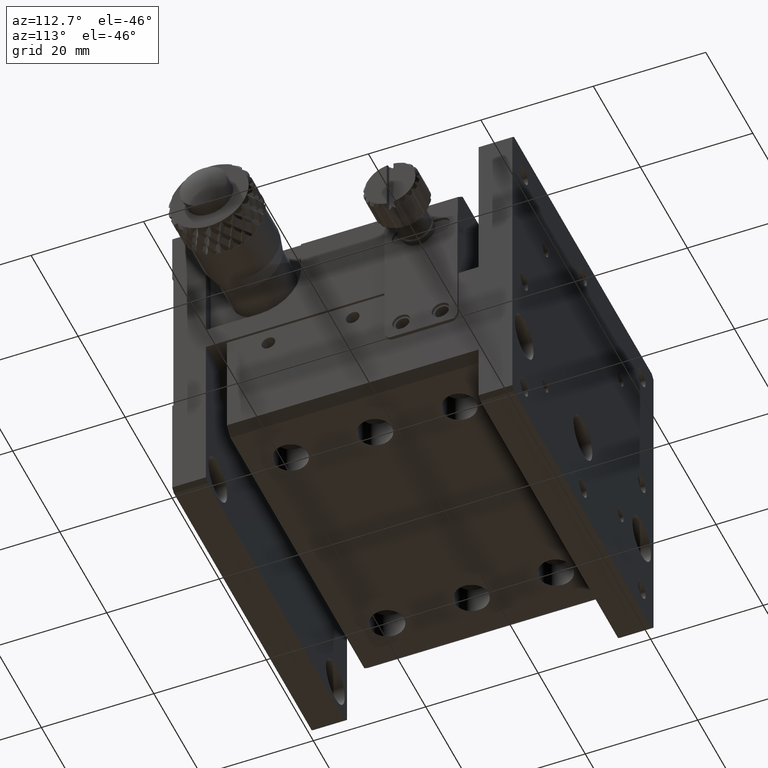
[diagram: clean part render]
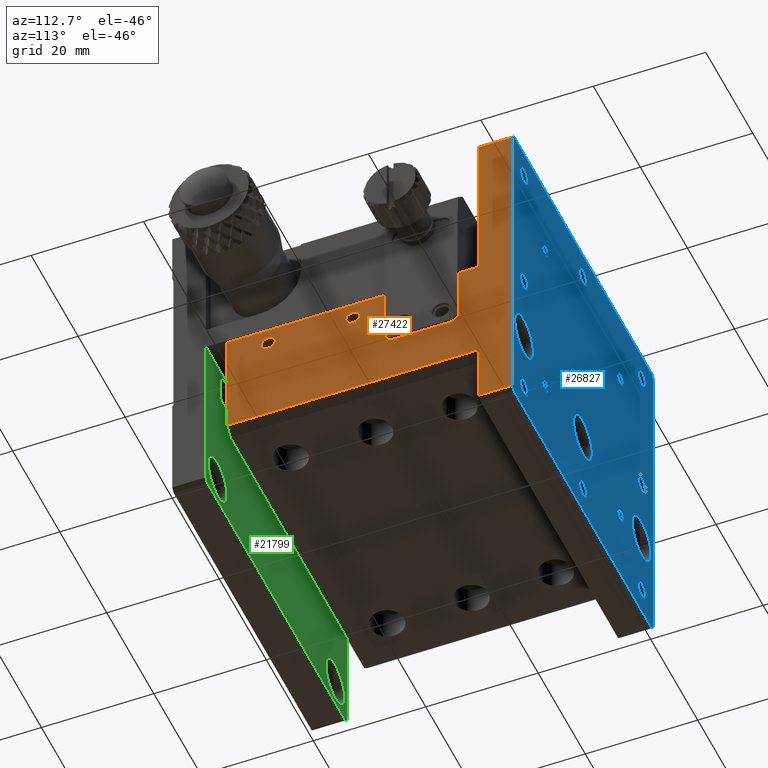
[diagram: same view with three faces highlighted in distinct colors, each labeled with its STEP entity id]
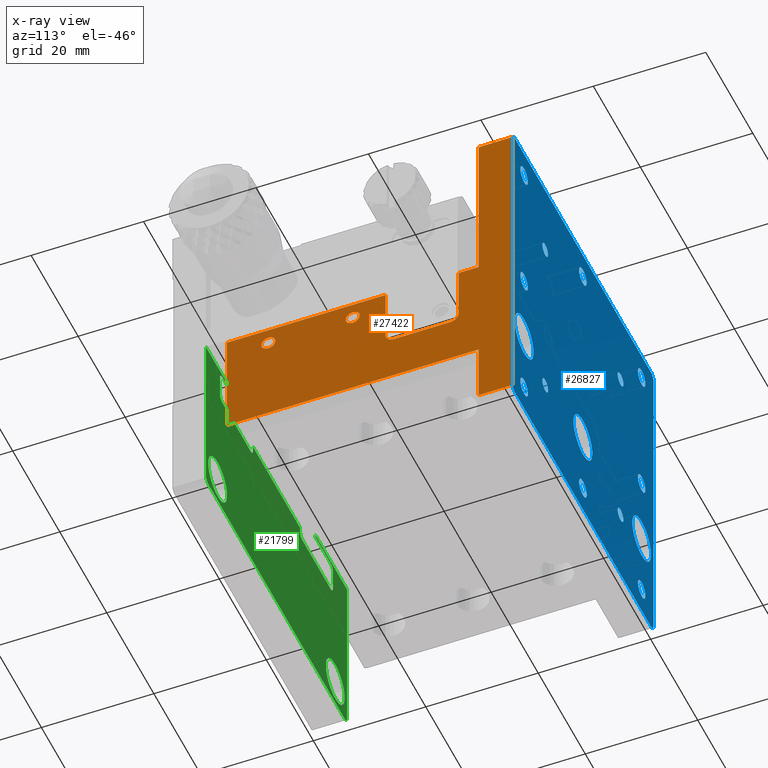
[diagram: x-ray of the same camera — body ghosted, the three highlighted faces saturated]
A machine part, auxiliary view with three faces highlighted in distinct colors.
The next image is the same camera in x-ray (body ghosted, the three faces saturated) — at least one of them is partly hidden behind the body in this view.
Their STEP definitions:

[orange] entity #27422 — the highlighted planar face has unit normal (1, 0, 0).
#132 = DIRECTION ( 'NONE',  ( -0.000000000000000000, 0.000000000000000000, -1.000000000000000000 ) ) ;
#361 = LINE ( 'NONE', #26179, #12329 ) ;
#518 = CARTESIAN_POINT ( 'NONE',  ( 60.00000000000000000, 32.10000000000000142, -32.00000000000000000 ) ) ;
#585 = VERTEX_POINT ( 'NONE', #11883 ) ;
#604 = CARTESIAN_POINT ( 'NONE',  ( 60.00000000000000000, 50.95000000000000995, -38.50000000000000000 ) ) ;
#813 = DIRECTION ( 'NONE',  ( 0.000000000000000000, 0.000000000000000000, -1.000000000000000000 ) ) ;
#874 = CIRCLE ( 'NONE', #2223, 1.500000000000001332 ) ;
#958 = CARTESIAN_POINT ( 'NONE',  ( 60.00000000000000000, 9.700000000000001066, -0.7099999999999999645 ) ) ;
#997 = VERTEX_POINT ( 'NONE', #18464 ) ;
#1286 = DIRECTION ( 'NONE',  ( 0.000000000000000000, 0.000000000000000000, 1.000000000000000000 ) ) ;
#1414 = AXIS2_PLACEMENT_3D ( 'NONE', #518, #6583, #4304 ) ;
#1678 = ORIENTED_EDGE ( 'NONE', *, *, #10411, .F. ) ;
#1834 = DIRECTION ( 'NONE',  ( 0.000000000000000000, -1.000000000000000000, -0.000000000000000000 ) ) ;
#1889 = DIRECTION ( 'NONE',  ( 0.000000000000000000, 0.000000000000000000, 1.000000000000000000 ) ) ;
#1951 = LINE ( 'NONE', #18872, #13512 ) ;
#2223 = AXIS2_PLACEMENT_3D ( 'NONE', #27567, #25463, #1889 ) ;
#2234 = CARTESIAN_POINT ( 'NONE',  ( 60.00000000000000000, 60.50000000000000000, 0.000000000000000000 ) ) ;
#2869 = CARTESIAN_POINT ( 'NONE',  ( 60.00000000000000000, 54.50000000000000000, -48.50000000000000000 ) ) ;
#2906 = EDGE_CURVE ( 'NONE', #10319, #10319, #8338, .T. ) ;
#3243 = DIRECTION ( 'NONE',  ( -1.000000000000000000, 0.000000000000000000, 0.000000000000000000 ) ) ;
#3566 = FACE_BOUND ( 'NONE', #14715, .T. ) ;
#3730 = ORIENTED_EDGE ( 'NONE', *, *, #22140, .T. ) ;
#3757 = CARTESIAN_POINT ( 'NONE',  ( 60.00000000000000000, 54.50000000000000000, -40.00000000000000000 ) ) ;
#3968 = ORIENTED_EDGE ( 'NONE', *, *, #4024, .T. ) ;
#3979 = VERTEX_POINT ( 'NONE', #7013 ) ;
#4024 = EDGE_CURVE ( 'NONE', #20504, #16964, #13659, .T. ) ;
#4056 = EDGE_CURVE ( 'NONE', #585, #27066, #25630, .T. ) ;
#4304 = DIRECTION ( 'NONE',  ( 0.000000000000000000, 0.000000000000000000, 1.000000000000000000 ) ) ;
#4367 = ORIENTED_EDGE ( 'NONE', *, *, #11198, .T. ) ;
#4764 = ORIENTED_EDGE ( 'NONE', *, *, #13915, .T. ) ;
#4921 = CARTESIAN_POINT ( 'NONE',  ( 60.00000000000000000, 54.50000000000000000, -0.7099999999999999645 ) ) ;
#5049 = EDGE_CURVE ( 'NONE', #24452, #18038, #16305, .T. ) ;
#5197 = DIRECTION ( 'NONE',  ( 0.000000000000000000, -1.000000000000000000, -0.000000000000000000 ) ) ;
#6245 = VECTOR ( 'NONE', #813, 1000.000000000000000 ) ;
#6423 = ORIENTED_EDGE ( 'NONE', *, *, #17096, .T. ) ;
#6583 = DIRECTION ( 'NONE',  ( -1.000000000000000000, 0.000000000000000000, 0.000000000000000000 ) ) ;
#7013 = CARTESIAN_POINT ( 'NONE',  ( 60.00000000000000000, 60.50000000000000000, -0.7100000000000001865 ) ) ;
#7658 = EDGE_CURVE ( 'NONE', #21727, #17479, #16406, .T. ) ;
#7670 = EDGE_CURVE ( 'NONE', #24306, #27386, #874, .T. ) ;
#7999 = DIRECTION ( 'NONE',  ( -1.000000000000000000, 0.000000000000000000, 0.000000000000000000 ) ) ;
#8166 = DIRECTION ( 'NONE',  ( 0.000000000000000000, 0.000000000000000000, -1.000000000000000000 ) ) ;
#8212 = CARTESIAN_POINT ( 'NONE',  ( 60.00000000000000000, 17.09999999999999787, -32.00000000000000000 ) ) ;
#8272 = VECTOR ( 'NONE', #132, 1000.000000000000000 ) ;
#8291 = AXIS2_PLACEMENT_3D ( 'NONE', #18672, #14449, #20507 ) ;
#8338 = CIRCLE ( 'NONE', #27706, 1.229500000000001370 ) ;
#9127 = LINE ( 'NONE', #18263, #24094 ) ;
#10319 = VERTEX_POINT ( 'NONE', #17076 ) ;
#10401 = DIRECTION ( 'NONE',  ( 0.000000000000000000, -1.000000000000000000, -0.000000000000000000 ) ) ;
#10411 = EDGE_CURVE ( 'NONE', #3979, #17479, #21572, .T. ) ;
#10969 = VERTEX_POINT ( 'NONE', #15035 ) ;
#11030 = CARTESIAN_POINT ( 'NONE',  ( 60.00000000000000000, 54.50000000000000000, -59.28999999999999204 ) ) ;
#11198 = EDGE_CURVE ( 'NONE', #16964, #997, #25681, .T. ) ;
#11335 = CARTESIAN_POINT ( 'NONE',  ( 60.00000000000000000, 54.50000000000000000, -0.7100000000000001865 ) ) ;
#11503 = ORIENTED_EDGE ( 'NONE', *, *, #26385, .T. ) ;
#11594 = VECTOR ( 'NONE', #20129, 1000.000000000000000 ) ;
#11715 = LINE ( 'NONE', #4921, #23466 ) ;
#11883 = CARTESIAN_POINT ( 'NONE',  ( 60.00000000000000000, 39.44999999999999574, -39.99999999999999289 ) ) ;
#12329 = VECTOR ( 'NONE', #13468, 1000.000000000000000 ) ;
#12407 = CARTESIAN_POINT ( 'NONE',  ( 60.00000000000000000, 54.50000000000000000, -0.7099999999999999645 ) ) ;
#12430 = ORIENTED_EDGE ( 'NONE', *, *, #2906, .T. ) ;
#13468 = DIRECTION ( 'NONE',  ( 0.000000000000000000, -1.000000000000000000, -0.000000000000000000 ) ) ;
#13512 = VECTOR ( 'NONE', #25934, 1000.000000000000000 ) ;
#13545 = ORIENTED_EDGE ( 'NONE', *, *, #22462, .T. ) ;
#13649 = CARTESIAN_POINT ( 'NONE',  ( 60.00000000000000000, 54.50000000000000000, -48.50000000000000000 ) ) ;
#13659 = LINE ( 'NONE', #20122, #6245 ) ;
#13915 = EDGE_CURVE ( 'NONE', #27386, #585, #26257, .T. ) ;
#14143 = EDGE_CURVE ( 'NONE', #10969, #10969, #27535, .T. ) ;
#14214 = EDGE_LOOP ( 'NONE', ( #12430 ) ) ;
#14307 = CARTESIAN_POINT ( 'NONE',  ( 60.00000000000000000, 54.50000000000000000, -59.28999999999999915 ) ) ;
#14449 = DIRECTION ( 'NONE',  ( 1.000000000000000000, 0.000000000000000000, 0.000000000000000000 ) ) ;
#14659 = EDGE_LOOP ( 'NONE', ( #3968, #4367, #13545, #26809, #4764, #23611, #27158, #11503, #25892, #3730, #18362, #27245, #1678, #6423 ) ) ;
#14715 = EDGE_LOOP ( 'NONE', ( #23903 ) ) ;
#15035 = CARTESIAN_POINT ( 'NONE',  ( 60.00000000000000000, 32.10000000000000142, -30.77049999999999841 ) ) ;
#15423 = CARTESIAN_POINT ( 'NONE',  ( 60.00000000000000000, 9.700000000000001066, -48.50000000000000000 ) ) ;
#15742 = LINE ( 'NONE', #13649, #23442 ) ;
#16305 = LINE ( 'NONE', #958, #11594 ) ;
#16406 = LINE ( 'NONE', #14307, #22933 ) ;
#16964 = VERTEX_POINT ( 'NONE', #23840 ) ;
#17076 = CARTESIAN_POINT ( 'NONE',  ( 60.00000000000000000, 17.09999999999999787, -30.77049999999999841 ) ) ;
#17096 = EDGE_CURVE ( 'NONE', #3979, #20504, #11715, .T. ) ;
#17479 = VERTEX_POINT ( 'NONE', #23092 ) ;
#18038 = VERTEX_POINT ( 'NONE', #15423 ) ;
#18263 = CARTESIAN_POINT ( 'NONE',  ( 60.00000000000000000, 37.94999999999999574, -0.7099999999999999645 ) ) ;
#18362 = ORIENTED_EDGE ( 'NONE', *, *, #20042, .T. ) ;
#18464 = CARTESIAN_POINT ( 'NONE',  ( 60.00000000000000000, 50.95000000000001705, -29.00000000000000000 ) ) ;
#18672 = CARTESIAN_POINT ( 'NONE',  ( 60.00000000000000000, 54.50000000000000000, -0.7099999999999999645 ) ) ;
#18707 = EDGE_CURVE ( 'NONE', #27066, #26411, #9127, .T. ) ;
#18753 = CARTESIAN_POINT ( 'NONE',  ( 60.00000000000000000, 54.50000000000000000, -29.00000000000000000 ) ) ;
#18872 = CARTESIAN_POINT ( 'NONE',  ( 60.00000000000000000, 50.95000000000001705, -0.7099999999999999645 ) ) ;
#19200 = CARTESIAN_POINT ( 'NONE',  ( 60.00000000000000000, 9.700000000000001066, -29.00000000000000000 ) ) ;
#19557 = VECTOR ( 'NONE', #1834, 1000.000000000000000 ) ;
#20042 = EDGE_CURVE ( 'NONE', #26305, #21727, #23104, .T. ) ;
#20122 = CARTESIAN_POINT ( 'NONE',  ( 60.00000000000000000, 54.50000000000000000, -0.7099999999999999645 ) ) ;
#20129 = DIRECTION ( 'NONE',  ( 0.000000000000000000, 0.000000000000000000, -1.000000000000000000 ) ) ;
#20365 = CARTESIAN_POINT ( 'NONE',  ( 60.00000000000000000, 49.44999999999999574, -40.00000000000000000 ) ) ;
#20504 = VERTEX_POINT ( 'NONE', #11335 ) ;
#20507 = DIRECTION ( 'NONE',  ( 0.000000000000000000, 0.000000000000000000, -1.000000000000000000 ) ) ;
#21082 = PLANE ( 'NONE',  #8291 ) ;
#21107 = CARTESIAN_POINT ( 'NONE',  ( 60.00000000000000000, 37.94999999999999574, -38.50000000000000000 ) ) ;
#21117 = CARTESIAN_POINT ( 'NONE',  ( 60.00000000000000000, 39.44999999999999574, -38.50000000000000000 ) ) ;
#21572 = LINE ( 'NONE', #2234, #8272 ) ;
#21727 = VERTEX_POINT ( 'NONE', #11030 ) ;
#21959 = DIRECTION ( 'NONE',  ( -0.000000000000000000, -0.000000000000000000, 1.000000000000000000 ) ) ;
#22140 = EDGE_CURVE ( 'NONE', #18038, #26305, #15742, .T. ) ;
#22462 = EDGE_CURVE ( 'NONE', #997, #24306, #1951, .T. ) ;
#22722 = VECTOR ( 'NONE', #8166, 1000.000000000000000 ) ;
#22895 = FACE_BOUND ( 'NONE', #14214, .T. ) ;
#22933 = VECTOR ( 'NONE', #25161, 1000.000000000000000 ) ;
#23092 = CARTESIAN_POINT ( 'NONE',  ( 60.00000000000000000, 60.50000000000000000, -59.28999999999999204 ) ) ;
#23104 = LINE ( 'NONE', #12407, #22722 ) ;
#23193 = FACE_OUTER_BOUND ( 'NONE', #14659, .T. ) ;
#23442 = VECTOR ( 'NONE', #27031, 1000.000000000000000 ) ;
#23466 = VECTOR ( 'NONE', #5197, 1000.000000000000000 ) ;
#23611 = ORIENTED_EDGE ( 'NONE', *, *, #4056, .T. ) ;
#23840 = CARTESIAN_POINT ( 'NONE',  ( 60.00000000000000000, 54.50000000000000000, -29.00000000000000000 ) ) ;
#23903 = ORIENTED_EDGE ( 'NONE', *, *, #14143, .T. ) ;
#24094 = VECTOR ( 'NONE', #21959, 1000.000000000000000 ) ;
#24306 = VERTEX_POINT ( 'NONE', #604 ) ;
#24452 = VERTEX_POINT ( 'NONE', #19200 ) ;
#25147 = AXIS2_PLACEMENT_3D ( 'NONE', #21117, #7999, #27459 ) ;
#25161 = DIRECTION ( 'NONE',  ( -0.000000000000000000, 1.000000000000000000, 0.000000000000000000 ) ) ;
#25463 = DIRECTION ( 'NONE',  ( -1.000000000000000000, 0.000000000000000000, 0.000000000000000000 ) ) ;
#25630 = CIRCLE ( 'NONE', #25147, 1.499999999999987566 ) ;
#25681 = LINE ( 'NONE', #18753, #19557 ) ;
#25892 = ORIENTED_EDGE ( 'NONE', *, *, #5049, .T. ) ;
#25934 = DIRECTION ( 'NONE',  ( 0.000000000000000000, 0.000000000000000000, -1.000000000000000000 ) ) ;
#26179 = CARTESIAN_POINT ( 'NONE',  ( 60.00000000000000000, 54.50000000000000000, -29.00000000000000000 ) ) ;
#26257 = LINE ( 'NONE', #3757, #26644 ) ;
#26305 = VERTEX_POINT ( 'NONE', #2869 ) ;
#26385 = EDGE_CURVE ( 'NONE', #26411, #24452, #361, .T. ) ;
#26411 = VERTEX_POINT ( 'NONE', #27284 ) ;
#26644 = VECTOR ( 'NONE', #10401, 1000.000000000000000 ) ;
#26809 = ORIENTED_EDGE ( 'NONE', *, *, #7670, .T. ) ;
#27031 = DIRECTION ( 'NONE',  ( -0.000000000000000000, 1.000000000000000000, 0.000000000000000000 ) ) ;
#27066 = VERTEX_POINT ( 'NONE', #21107 ) ;
#27158 = ORIENTED_EDGE ( 'NONE', *, *, #18707, .T. ) ;
#27245 = ORIENTED_EDGE ( 'NONE', *, *, #7658, .T. ) ;
#27284 = CARTESIAN_POINT ( 'NONE',  ( 60.00000000000000000, 37.94999999999999574, -29.00000000000000000 ) ) ;
#27386 = VERTEX_POINT ( 'NONE', #20365 ) ;
#27422 = ADVANCED_FACE ( 'NONE', ( #3566, #22895, #23193 ), #21082, .T. ) ;
#27459 = DIRECTION ( 'NONE',  ( 0.000000000000000000, 0.000000000000000000, 1.000000000000000000 ) ) ;
#27535 = CIRCLE ( 'NONE', #1414, 1.229500000000001370 ) ;
#27567 = CARTESIAN_POINT ( 'NONE',  ( 60.00000000000000000, 49.44999999999999574, -38.50000000000000000 ) ) ;
#27706 = AXIS2_PLACEMENT_3D ( 'NONE', #8212, #3243, #1286 ) ;

[blue] entity #26827 — the highlighted planar face has unit normal (0, 1, 0).
#1 = CARTESIAN_POINT ( 'NONE',  ( 30.00000000000000000, 60.50000000000000000, -55.00000000000000000 ) ) ;
#26 = AXIS2_PLACEMENT_3D ( 'NONE', #1409, #3789, #8187 ) ;
#104 = CARTESIAN_POINT ( 'NONE',  ( 0.000000000000000000, 60.50000000000000000, 1.084202172485499997E-16 ) ) ;
#132 = DIRECTION ( 'NONE',  ( -0.000000000000000000, 0.000000000000000000, -1.000000000000000000 ) ) ;
#229 = CARTESIAN_POINT ( 'NONE',  ( 30.00000000000000000, 60.50000000000000000, -47.00000000000000000 ) ) ;
#969 = AXIS2_PLACEMENT_3D ( 'NONE', #14537, #12008, #3659 ) ;
#1342 = CIRCLE ( 'NONE', #23420, 1.229499999999999593 ) ;
#1409 = CARTESIAN_POINT ( 'NONE',  ( 5.000000000000000000, 60.50000000000000000, -30.00000000000000000 ) ) ;
#1676 = FACE_BOUND ( 'NONE', #4078, .T. ) ;
#1874 = ORIENTED_EDGE ( 'NONE', *, *, #17257, .T. ) ;
#1896 = CIRCLE ( 'NONE', #23529, 3.999999999999996447 ) ;
#1953 = DIRECTION ( 'NONE',  ( 0.000000000000000000, 1.000000000000000000, 0.000000000000000000 ) ) ;
#2215 = VERTEX_POINT ( 'NONE', #16032 ) ;
#2234 = CARTESIAN_POINT ( 'NONE',  ( 60.00000000000000000, 60.50000000000000000, 0.000000000000000000 ) ) ;
#2417 = DIRECTION ( 'NONE',  ( 0.000000000000000000, -1.000000000000000000, 0.000000000000000000 ) ) ;
#2547 = ORIENTED_EDGE ( 'NONE', *, *, #3674, .T. ) ;
#2925 = CARTESIAN_POINT ( 'NONE',  ( 60.00000000000000000, 60.50000000000000000, -59.28999999999999915 ) ) ;
#2940 = CIRCLE ( 'NONE', #20060, 1.229500000000001370 ) ;
#3249 = DIRECTION ( 'NONE',  ( 0.000000000000000000, -0.000000000000000000, 1.000000000000000000 ) ) ;
#3287 = CARTESIAN_POINT ( 'NONE',  ( 55.00000000000000000, 60.50000000000000000, -30.00000000000000000 ) ) ;
#3359 = AXIS2_PLACEMENT_3D ( 'NONE', #1, #8618, #26089 ) ;
#3361 = CARTESIAN_POINT ( 'NONE',  ( 14.00000000000000000, 60.50000000000000000, -47.22950000000000159 ) ) ;
#3491 = FACE_BOUND ( 'NONE', #9762, .T. ) ;
#3526 = ORIENTED_EDGE ( 'NONE', *, *, #10411, .T. ) ;
#3637 = FACE_BOUND ( 'NONE', #21629, .T. ) ;
#3659 = DIRECTION ( 'NONE',  ( 0.000000000000000000, 0.000000000000000000, -1.000000000000000000 ) ) ;
#3674 = EDGE_CURVE ( 'NONE', #6503, #6503, #17706, .T. ) ;
#3789 = DIRECTION ( 'NONE',  ( 0.000000000000000000, -1.000000000000000000, 0.000000000000000000 ) ) ;
#3834 = CIRCLE ( 'NONE', #13753, 1.229499999999999593 ) ;
#3898 = CARTESIAN_POINT ( 'NONE',  ( 0.7100000000000080691, 60.50000000000000000, -60.00000000000000000 ) ) ;
#3979 = VERTEX_POINT ( 'NONE', #7013 ) ;
#3992 = DIRECTION ( 'NONE',  ( -0.7071067811865470176, -0.000000000000000000, -0.7071067811865480168 ) ) ;
#4078 = EDGE_LOOP ( 'NONE', ( #9546 ) ) ;
#4088 = AXIS2_PLACEMENT_3D ( 'NONE', #17019, #6309, #16594 ) ;
#4189 = VECTOR ( 'NONE', #6835, 1000.000000000000000 ) ;
#4196 = DIRECTION ( 'NONE',  ( 0.000000000000000000, 0.000000000000000000, -1.000000000000000000 ) ) ;
#4353 = EDGE_LOOP ( 'NONE', ( #2547 ) ) ;
#4681 = VECTOR ( 'NONE', #9441, 1000.000000000000114 ) ;
#4690 = DIRECTION ( 'NONE',  ( 0.000000000000000000, 0.000000000000000000, -1.000000000000000000 ) ) ;
#4933 = DIRECTION ( 'NONE',  ( 0.000000000000000000, 0.000000000000000000, -1.000000000000000000 ) ) ;
#5260 = VERTEX_POINT ( 'NONE', #24598 ) ;
#5315 = EDGE_CURVE ( 'NONE', #9752, #2215, #19556, .T. ) ;
#5516 = EDGE_LOOP ( 'NONE', ( #18118, #11267, #15807, #27415, #22631, #13169, #3526, #11101 ) ) ;
#5530 = VECTOR ( 'NONE', #3249, 1000.000000000000000 ) ;
#5566 = CARTESIAN_POINT ( 'NONE',  ( 46.00000000000000000, 60.50000000000000000, -15.22949999999999982 ) ) ;
#5607 = FACE_OUTER_BOUND ( 'NONE', #5516, .T. ) ;
#5649 = DIRECTION ( 'NONE',  ( 0.000000000000000000, -1.000000000000000000, 0.000000000000000000 ) ) ;
#5662 = DIRECTION ( 'NONE',  ( 0.000000000000000000, -1.000000000000000000, 0.000000000000000000 ) ) ;
#5746 = DIRECTION ( 'NONE',  ( 0.000000000000000000, -0.000000000000000000, 1.000000000000000000 ) ) ;
#5861 = ORIENTED_EDGE ( 'NONE', *, *, #8683, .T. ) ;
#5898 = FACE_BOUND ( 'NONE', #20568, .T. ) ;
#6043 = FACE_BOUND ( 'NONE', #14518, .T. ) ;
#6054 = CARTESIAN_POINT ( 'NONE',  ( 59.28999999999999915, 60.50000000000000000, -60.00000000000000000 ) ) ;
#6180 = FACE_BOUND ( 'NONE', #15155, .T. ) ;
#6308 = DIRECTION ( 'NONE',  ( -1.000000000000000000, -0.000000000000000000, 0.000000000000000000 ) ) ;
#6309 = DIRECTION ( 'NONE',  ( 0.000000000000000000, -1.000000000000000000, 0.000000000000000000 ) ) ;
#6329 = DIRECTION ( 'NONE',  ( 0.000000000000000000, -1.000000000000000000, 0.000000000000000000 ) ) ;
#6503 = VERTEX_POINT ( 'NONE', #15103 ) ;
#6508 = CIRCLE ( 'NONE', #24963, 1.620999999999999996 ) ;
#6627 = EDGE_LOOP ( 'NONE', ( #24830 ) ) ;
#6653 = EDGE_CURVE ( 'NONE', #24400, #24400, #6508, .T. ) ;
#6835 = DIRECTION ( 'NONE',  ( 0.7071067811865500152, -0.000000000000000000, -0.7071067811865450192 ) ) ;
#6926 = CARTESIAN_POINT ( 'NONE',  ( 14.00000000000000000, 60.50000000000000000, -14.00000000000000000 ) ) ;
#7013 = CARTESIAN_POINT ( 'NONE',  ( 60.00000000000000000, 60.50000000000000000, -0.7100000000000001865 ) ) ;
#7041 = CARTESIAN_POINT ( 'NONE',  ( 30.00000000000000000, 60.50000000000000000, -6.621000000000000441 ) ) ;
#7604 = EDGE_CURVE ( 'NONE', #18601, #18601, #22040, .T. ) ;
#7804 = DIRECTION ( 'NONE',  ( 0.000000000000000000, 0.000000000000000000, -1.000000000000000000 ) ) ;
#7820 = CARTESIAN_POINT ( 'NONE',  ( 55.00000000000000000, 60.50000000000000000, -5.000000000000000000 ) ) ;
#7837 = EDGE_CURVE ( 'NONE', #9598, #9598, #14395, .T. ) ;
#7887 = FACE_BOUND ( 'NONE', #18444, .T. ) ;
#7939 = DIRECTION ( 'NONE',  ( 0.000000000000000000, 0.000000000000000000, -1.000000000000000000 ) ) ;
#7994 = VERTEX_POINT ( 'NONE', #22510 ) ;
#8187 = DIRECTION ( 'NONE',  ( 0.000000000000000000, 0.000000000000000000, -1.000000000000000000 ) ) ;
#8272 = VECTOR ( 'NONE', #132, 1000.000000000000000 ) ;
#8317 = FACE_BOUND ( 'NONE', #4353, .T. ) ;
#8330 = AXIS2_PLACEMENT_3D ( 'NONE', #21496, #27414, #23605 ) ;
#8439 = DIRECTION ( 'NONE',  ( 0.000000000000000000, -1.000000000000000000, 0.000000000000000000 ) ) ;
#8504 = EDGE_LOOP ( 'NONE', ( #25013 ) ) ;
#8549 = ORIENTED_EDGE ( 'NONE', *, *, #20238, .T. ) ;
#8618 = DIRECTION ( 'NONE',  ( 0.000000000000000000, -1.000000000000000000, 0.000000000000000000 ) ) ;
#8673 = LINE ( 'NONE', #17249, #13683 ) ;
#8683 = EDGE_CURVE ( 'NONE', #12282, #12282, #2940, .T. ) ;
#8707 = CARTESIAN_POINT ( 'NONE',  ( 55.00000000000000000, 60.50000000000000000, -56.62099999999999511 ) ) ;
#8725 = VECTOR ( 'NONE', #6308, 1000.000000000000000 ) ;
#9116 = VERTEX_POINT ( 'NONE', #26591 ) ;
#9256 = CARTESIAN_POINT ( 'NONE',  ( 5.000000000000000000, 60.50000000000000000, -31.62099999999999511 ) ) ;
#9407 = EDGE_CURVE ( 'NONE', #16220, #11520, #17678, .T. ) ;
#9441 = DIRECTION ( 'NONE',  ( 0.7071067811865474617, -0.000000000000000000, 0.7071067811865474617 ) ) ;
#9489 = CARTESIAN_POINT ( 'NONE',  ( 0.000000000000000000, 60.50000000000000000, 0.000000000000000000 ) ) ;
#9546 = ORIENTED_EDGE ( 'NONE', *, *, #6653, .T. ) ;
#9598 = VERTEX_POINT ( 'NONE', #25097 ) ;
#9665 = CARTESIAN_POINT ( 'NONE',  ( 5.000000000000000000, 60.50000000000000000, -56.62099999999999511 ) ) ;
#9752 = VERTEX_POINT ( 'NONE', #27405 ) ;
#9762 = EDGE_LOOP ( 'NONE', ( #24676 ) ) ;
#9827 = VERTEX_POINT ( 'NONE', #5566 ) ;
#9884 = AXIS2_PLACEMENT_3D ( 'NONE', #3287, #14597, #25023 ) ;
#9911 = EDGE_CURVE ( 'NONE', #9992, #10666, #23016, .T. ) ;
#9992 = VERTEX_POINT ( 'NONE', #12748 ) ;
#10306 = ORIENTED_EDGE ( 'NONE', *, *, #18261, .T. ) ;
#10411 = EDGE_CURVE ( 'NONE', #3979, #17479, #21572, .T. ) ;
#10557 = CARTESIAN_POINT ( 'NONE',  ( 30.00000000000000000, 60.50000000000000000, -43.00000000000000000 ) ) ;
#10622 = EDGE_LOOP ( 'NONE', ( #10306 ) ) ;
#10666 = VERTEX_POINT ( 'NONE', #26157 ) ;
#10694 = CARTESIAN_POINT ( 'NONE',  ( 0.000000000000000000, 60.50000000000000000, -60.00000000000000000 ) ) ;
#10826 = VERTEX_POINT ( 'NONE', #17153 ) ;
#11101 = ORIENTED_EDGE ( 'NONE', *, *, #19916, .F. ) ;
#11194 = EDGE_LOOP ( 'NONE', ( #22640 ) ) ;
#11267 = ORIENTED_EDGE ( 'NONE', *, *, #26289, .F. ) ;
#11520 = VERTEX_POINT ( 'NONE', #3898 ) ;
#11834 = ORIENTED_EDGE ( 'NONE', *, *, #7837, .T. ) ;
#11888 = AXIS2_PLACEMENT_3D ( 'NONE', #7820, #22618, #12206 ) ;
#12008 = DIRECTION ( 'NONE',  ( 0.000000000000000000, -1.000000000000000000, 0.000000000000000000 ) ) ;
#12058 = VERTEX_POINT ( 'NONE', #22763 ) ;
#12176 = DIRECTION ( 'NONE',  ( 0.000000000000000000, 0.000000000000000000, -1.000000000000000000 ) ) ;
#12206 = DIRECTION ( 'NONE',  ( 0.000000000000000000, 0.000000000000000000, -1.000000000000000000 ) ) ;
#12272 = FACE_BOUND ( 'NONE', #15981, .T. ) ;
#12282 = VERTEX_POINT ( 'NONE', #3361 ) ;
#12337 = EDGE_LOOP ( 'NONE', ( #24281 ) ) ;
#12379 = CIRCLE ( 'NONE', #8330, 3.999999999999996447 ) ;
#12705 = CARTESIAN_POINT ( 'NONE',  ( 5.000000000000000000, 60.50000000000000000, -5.000000000000000000 ) ) ;
#12720 = EDGE_LOOP ( 'NONE', ( #14933 ) ) ;
#12748 = CARTESIAN_POINT ( 'NONE',  ( 7.047314121155778821E-16, 60.50000000000000000, -59.29000000000000625 ) ) ;
#13162 = CIRCLE ( 'NONE', #969, 1.620999999999997332 ) ;
#13169 = ORIENTED_EDGE ( 'NONE', *, *, #26473, .F. ) ;
#13438 = DIRECTION ( 'NONE',  ( 0.000000000000000000, -1.000000000000000000, 0.000000000000000000 ) ) ;
#13478 = VERTEX_POINT ( 'NONE', #9665 ) ;
#13582 = CIRCLE ( 'NONE', #4088, 1.229500000000001370 ) ;
#13683 = VECTOR ( 'NONE', #3992, 1000.000000000000000 ) ;
#13753 = AXIS2_PLACEMENT_3D ( 'NONE', #6926, #2417, #4933 ) ;
#13858 = VECTOR ( 'NONE', #23923, 1000.000000000000000 ) ;
#14110 = EDGE_CURVE ( 'NONE', #10826, #10826, #13582, .T. ) ;
#14193 = CIRCLE ( 'NONE', #3359, 1.620999999999997332 ) ;
#14238 = FACE_BOUND ( 'NONE', #8504, .T. ) ;
#14395 = CIRCLE ( 'NONE', #17081, 3.999999999999996447 ) ;
#14518 = EDGE_LOOP ( 'NONE', ( #11834 ) ) ;
#14537 = CARTESIAN_POINT ( 'NONE',  ( 55.00000000000000000, 60.50000000000000000, -55.00000000000000000 ) ) ;
#14597 = DIRECTION ( 'NONE',  ( 0.000000000000000000, -1.000000000000000000, 0.000000000000000000 ) ) ;
#14931 = DIRECTION ( 'NONE',  ( 0.000000000000000000, 0.000000000000000000, -1.000000000000000000 ) ) ;
#14933 = ORIENTED_EDGE ( 'NONE', *, *, #15869, .T. ) ;
#14943 = CARTESIAN_POINT ( 'NONE',  ( 5.000000000000000000, 60.50000000000000000, -55.00000000000000000 ) ) ;
#14999 = EDGE_CURVE ( 'NONE', #21675, #21675, #13162, .T. ) ;
#15103 = CARTESIAN_POINT ( 'NONE',  ( 5.000000000000000000, 60.50000000000000000, -6.621000000000000441 ) ) ;
#15155 = EDGE_LOOP ( 'NONE', ( #8549 ) ) ;
#15431 = EDGE_CURVE ( 'NONE', #19545, #19545, #1896, .T. ) ;
#15788 = AXIS2_PLACEMENT_3D ( 'NONE', #14943, #23955, #4196 ) ;
#15807 = ORIENTED_EDGE ( 'NONE', *, *, #9911, .T. ) ;
#15869 = EDGE_CURVE ( 'NONE', #24187, #24187, #17560, .T. ) ;
#15981 = EDGE_LOOP ( 'NONE', ( #26142 ) ) ;
#16032 = CARTESIAN_POINT ( 'NONE',  ( 59.29000000000000625, 60.50000000000000000, -8.470329472543002405E-16 ) ) ;
#16042 = ORIENTED_EDGE ( 'NONE', *, *, #19384, .T. ) ;
#16220 = VERTEX_POINT ( 'NONE', #6054 ) ;
#16380 = CARTESIAN_POINT ( 'NONE',  ( 14.00000000000000000, 60.50000000000000000, -46.00000000000000000 ) ) ;
#16473 = FACE_BOUND ( 'NONE', #12337, .T. ) ;
#16542 = DIRECTION ( 'NONE',  ( -0.7071067811865450192, -0.000000000000000000, 0.7071067811865500152 ) ) ;
#16594 = DIRECTION ( 'NONE',  ( 0.000000000000000000, 0.000000000000000000, -1.000000000000000000 ) ) ;
#17019 = CARTESIAN_POINT ( 'NONE',  ( 46.00000000000000000, 60.50000000000000000, -46.00000000000000000 ) ) ;
#17081 = AXIS2_PLACEMENT_3D ( 'NONE', #20907, #5649, #12176 ) ;
#17153 = CARTESIAN_POINT ( 'NONE',  ( 46.00000000000000000, 60.50000000000000000, -47.22950000000000159 ) ) ;
#17249 = CARTESIAN_POINT ( 'NONE',  ( 0.000000000000000000, 60.50000000000000000, -0.7100000000000009637 ) ) ;
#17257 = EDGE_CURVE ( 'NONE', #13478, #13478, #23005, .T. ) ;
#17479 = VERTEX_POINT ( 'NONE', #23092 ) ;
#17560 = CIRCLE ( 'NONE', #26, 1.620999999999997332 ) ;
#17678 = LINE ( 'NONE', #10694, #8725 ) ;
#17706 = CIRCLE ( 'NONE', #21332, 1.620999999999999996 ) ;
#18118 = ORIENTED_EDGE ( 'NONE', *, *, #9407, .T. ) ;
#18261 = EDGE_CURVE ( 'NONE', #9116, #9116, #14193, .T. ) ;
#18444 = EDGE_LOOP ( 'NONE', ( #5861 ) ) ;
#18601 = VERTEX_POINT ( 'NONE', #20585 ) ;
#18670 = LINE ( 'NONE', #26865, #25831 ) ;
#18876 = FACE_BOUND ( 'NONE', #11194, .T. ) ;
#19384 = EDGE_CURVE ( 'NONE', #5260, #5260, #3834, .T. ) ;
#19545 = VERTEX_POINT ( 'NONE', #229 ) ;
#19556 = LINE ( 'NONE', #104, #13858 ) ;
#19810 = CARTESIAN_POINT ( 'NONE',  ( 0.7100000000000009637, 60.50000000000000000, -60.00000000000000000 ) ) ;
#19916 = EDGE_CURVE ( 'NONE', #16220, #17479, #20427, .T. ) ;
#20060 = AXIS2_PLACEMENT_3D ( 'NONE', #16380, #27544, #7939 ) ;
#20218 = LINE ( 'NONE', #19810, #4189 ) ;
#20238 = EDGE_CURVE ( 'NONE', #12058, #12058, #12379, .T. ) ;
#20427 = LINE ( 'NONE', #2925, #4681 ) ;
#20568 = EDGE_LOOP ( 'NONE', ( #16042 ) ) ;
#20585 = CARTESIAN_POINT ( 'NONE',  ( 55.00000000000000000, 60.50000000000000000, -31.62099999999999511 ) ) ;
#20861 = FACE_BOUND ( 'NONE', #10622, .T. ) ;
#20907 = CARTESIAN_POINT ( 'NONE',  ( 55.00000000000000000, 60.50000000000000000, -43.00000000000000000 ) ) ;
#21332 = AXIS2_PLACEMENT_3D ( 'NONE', #12705, #6329, #14931 ) ;
#21496 = CARTESIAN_POINT ( 'NONE',  ( 5.000000000000000000, 60.50000000000000000, -43.00000000000000000 ) ) ;
#21572 = LINE ( 'NONE', #2234, #8272 ) ;
#21629 = EDGE_LOOP ( 'NONE', ( #1874 ) ) ;
#21675 = VERTEX_POINT ( 'NONE', #8707 ) ;
#21770 = CARTESIAN_POINT ( 'NONE',  ( 46.00000000000000000, 60.50000000000000000, -14.00000000000000000 ) ) ;
#22040 = CIRCLE ( 'NONE', #9884, 1.620999999999997332 ) ;
#22045 = DIRECTION ( 'NONE',  ( 0.000000000000000000, 0.000000000000000000, -1.000000000000000000 ) ) ;
#22510 = CARTESIAN_POINT ( 'NONE',  ( 55.00000000000000000, 60.50000000000000000, -6.621000000000000441 ) ) ;
#22618 = DIRECTION ( 'NONE',  ( 0.000000000000000000, -1.000000000000000000, 0.000000000000000000 ) ) ;
#22631 = ORIENTED_EDGE ( 'NONE', *, *, #5315, .T. ) ;
#22640 = ORIENTED_EDGE ( 'NONE', *, *, #15431, .T. ) ;
#22763 = CARTESIAN_POINT ( 'NONE',  ( 5.000000000000000000, 60.50000000000000000, -47.00000000000000000 ) ) ;
#22825 = FACE_BOUND ( 'NONE', #12720, .T. ) ;
#23005 = CIRCLE ( 'NONE', #15788, 1.620999999999997332 ) ;
#23016 = LINE ( 'NONE', #9489, #5530 ) ;
#23092 = CARTESIAN_POINT ( 'NONE',  ( 60.00000000000000000, 60.50000000000000000, -59.28999999999999204 ) ) ;
#23420 = AXIS2_PLACEMENT_3D ( 'NONE', #21770, #13438, #22045 ) ;
#23529 = AXIS2_PLACEMENT_3D ( 'NONE', #10557, #8439, #4690 ) ;
#23605 = DIRECTION ( 'NONE',  ( 0.000000000000000000, 0.000000000000000000, -1.000000000000000000 ) ) ;
#23923 = DIRECTION ( 'NONE',  ( 1.000000000000000000, 0.000000000000000000, -0.000000000000000000 ) ) ;
#23955 = DIRECTION ( 'NONE',  ( 0.000000000000000000, -1.000000000000000000, 0.000000000000000000 ) ) ;
#24043 = CIRCLE ( 'NONE', #11888, 1.620999999999999996 ) ;
#24187 = VERTEX_POINT ( 'NONE', #9256 ) ;
#24281 = ORIENTED_EDGE ( 'NONE', *, *, #14110, .T. ) ;
#24304 = EDGE_CURVE ( 'NONE', #9827, #9827, #1342, .T. ) ;
#24400 = VERTEX_POINT ( 'NONE', #7041 ) ;
#24598 = CARTESIAN_POINT ( 'NONE',  ( 14.00000000000000000, 60.50000000000000000, -15.22949999999999982 ) ) ;
#24676 = ORIENTED_EDGE ( 'NONE', *, *, #14999, .T. ) ;
#24830 = ORIENTED_EDGE ( 'NONE', *, *, #27423, .T. ) ;
#24922 = AXIS2_PLACEMENT_3D ( 'NONE', #25086, #1953, #5746 ) ;
#24963 = AXIS2_PLACEMENT_3D ( 'NONE', #25298, #5662, #7804 ) ;
#25013 = ORIENTED_EDGE ( 'NONE', *, *, #7604, .T. ) ;
#25023 = DIRECTION ( 'NONE',  ( 0.000000000000000000, 0.000000000000000000, -1.000000000000000000 ) ) ;
#25086 = CARTESIAN_POINT ( 'NONE',  ( 0.000000000000000000, 60.50000000000000000, 0.000000000000000000 ) ) ;
#25097 = CARTESIAN_POINT ( 'NONE',  ( 55.00000000000000000, 60.50000000000000000, -47.00000000000000000 ) ) ;
#25298 = CARTESIAN_POINT ( 'NONE',  ( 30.00000000000000000, 60.50000000000000000, -5.000000000000000000 ) ) ;
#25522 = PLANE ( 'NONE',  #24922 ) ;
#25831 = VECTOR ( 'NONE', #16542, 1000.000000000000000 ) ;
#26089 = DIRECTION ( 'NONE',  ( 0.000000000000000000, 0.000000000000000000, -1.000000000000000000 ) ) ;
#26142 = ORIENTED_EDGE ( 'NONE', *, *, #24304, .T. ) ;
#26157 = CARTESIAN_POINT ( 'NONE',  ( 1.355252715606880851E-17, 60.50000000000000000, -0.7100000000000011857 ) ) ;
#26289 = EDGE_CURVE ( 'NONE', #9992, #11520, #20218, .T. ) ;
#26473 = EDGE_CURVE ( 'NONE', #3979, #2215, #18670, .T. ) ;
#26591 = CARTESIAN_POINT ( 'NONE',  ( 30.00000000000000000, 60.50000000000000000, -56.62099999999999511 ) ) ;
#26827 = ADVANCED_FACE ( 'NONE', ( #5607, #8317, #1676, #27214, #22825, #14238, #3637, #20861, #3491, #5898, #12272, #7887, #16473, #6180, #18876, #6043 ), #25522, .T. ) ;
#26865 = CARTESIAN_POINT ( 'NONE',  ( 59.28999999999999915, 60.50000000000000000, 0.000000000000000000 ) ) ;
#27214 = FACE_BOUND ( 'NONE', #6627, .T. ) ;
#27405 = CARTESIAN_POINT ( 'NONE',  ( 0.7099999999999999645, 60.50000000000000000, -5.416677968589100837E-32 ) ) ;
#27414 = DIRECTION ( 'NONE',  ( 0.000000000000000000, -1.000000000000000000, 0.000000000000000000 ) ) ;
#27415 = ORIENTED_EDGE ( 'NONE', *, *, #27526, .F. ) ;
#27423 = EDGE_CURVE ( 'NONE', #7994, #7994, #24043, .T. ) ;
#27526 = EDGE_CURVE ( 'NONE', #9752, #10666, #8673, .T. ) ;
#27544 = DIRECTION ( 'NONE',  ( 0.000000000000000000, -1.000000000000000000, 0.000000000000000000 ) ) ;

[green] entity #21799 — the highlighted planar face has unit normal (0, 1, 0).
#107 = CARTESIAN_POINT ( 'NONE',  ( 54.00000000000000000, 6.000000000000000000, 0.000000000000000000 ) ) ;
#109 = EDGE_CURVE ( 'NONE', #4011, #18222, #1399, .T. ) ;
#454 = EDGE_CURVE ( 'NONE', #25770, #21306, #10079, .T. ) ;
#630 = VERTEX_POINT ( 'NONE', #24562 ) ;
#694 = EDGE_CURVE ( 'NONE', #4289, #20390, #8215, .T. ) ;
#901 = VECTOR ( 'NONE', #12221, 1000.000000000000000 ) ;
#1116 = DIRECTION ( 'NONE',  ( 0.000000000000000000, 1.000000000000000000, 0.000000000000000000 ) ) ;
#1399 = LINE ( 'NONE', #10007, #3080 ) ;
#1537 = CARTESIAN_POINT ( 'NONE',  ( 59.28999999999999915, 6.000000000000000888, -60.00000000000000000 ) ) ;
#1550 = VECTOR ( 'NONE', #10032, 1000.000000000000000 ) ;
#1792 = CARTESIAN_POINT ( 'NONE',  ( 20.00000000000000000, 6.000000000000000000, -34.00000000000000000 ) ) ;
#1878 = AXIS2_PLACEMENT_3D ( 'NONE', #10165, #16212, #11869 ) ;
#2005 = ORIENTED_EDGE ( 'NONE', *, *, #3250, .T. ) ;
#2132 = CARTESIAN_POINT ( 'NONE',  ( 53.00000000000000000, 6.000000000000000000, -30.00000000000000000 ) ) ;
#2596 = CARTESIAN_POINT ( 'NONE',  ( 53.00000000000000000, 6.000000000000000000, -35.00000000000000000 ) ) ;
#2719 = CARTESIAN_POINT ( 'NONE',  ( 5.000000000000000000, 6.000000000000000000, -55.00000000000000000 ) ) ;
#3046 = CARTESIAN_POINT ( 'NONE',  ( 6.000000000000000000, 6.000000000000000000, -34.00000000000000000 ) ) ;
#3063 = DIRECTION ( 'NONE',  ( -1.000000000000000000, -0.000000000000000000, 0.000000000000000000 ) ) ;
#3080 = VECTOR ( 'NONE', #27218, 1000.000000000000000 ) ;
#3112 = AXIS2_PLACEMENT_3D ( 'NONE', #11845, #1116, #12122 ) ;
#3250 = EDGE_CURVE ( 'NONE', #15566, #17896, #5427, .T. ) ;
#3253 = EDGE_CURVE ( 'NONE', #20390, #25770, #11949, .T. ) ;
#3340 = VERTEX_POINT ( 'NONE', #17002 ) ;
#3454 = CARTESIAN_POINT ( 'NONE',  ( 13.50000000000000000, 5.999999999999998224, -28.50000000000000000 ) ) ;
#3906 = CARTESIAN_POINT ( 'NONE',  ( 6.999999999999999112, 5.999999999999999112, -29.00000000000000711 ) ) ;
#3921 = DIRECTION ( 'NONE',  ( -0.000000000000000000, -1.000000000000000000, -0.000000000000000000 ) ) ;
#4011 = VERTEX_POINT ( 'NONE', #26764 ) ;
#4090 = DIRECTION ( 'NONE',  ( 0.000000000000000000, 0.000000000000000000, 1.000000000000000000 ) ) ;
#4223 = ORIENTED_EDGE ( 'NONE', *, *, #18069, .T. ) ;
#4289 = VERTEX_POINT ( 'NONE', #8709 ) ;
#4325 = CARTESIAN_POINT ( 'NONE',  ( 53.00000000000000000, 6.000000000000000000, -34.00000000000000000 ) ) ;
#4326 = CARTESIAN_POINT ( 'NONE',  ( 6.000000000000000000, 6.000000000000000000, -30.00000000000000000 ) ) ;
#4552 = ORIENTED_EDGE ( 'NONE', *, *, #16077, .T. ) ;
#4905 = ORIENTED_EDGE ( 'NONE', *, *, #454, .T. ) ;
#5180 = LINE ( 'NONE', #7174, #7624 ) ;
#5244 = ORIENTED_EDGE ( 'NONE', *, *, #26122, .T. ) ;
#5427 = LINE ( 'NONE', #10381, #27235 ) ;
#5455 = ORIENTED_EDGE ( 'NONE', *, *, #23482, .T. ) ;
#5499 = DIRECTION ( 'NONE',  ( 1.000000000000000000, 0.000000000000000000, -0.000000000000000000 ) ) ;
#5687 = LINE ( 'NONE', #7972, #6188 ) ;
#5906 = CARTESIAN_POINT ( 'NONE',  ( 55.00000000000000000, 6.000000000000000000, -59.00000000000002132 ) ) ;
#6095 = CARTESIAN_POINT ( 'NONE',  ( 60.00000000000000000, 6.000000000000000000, -59.28999999999999915 ) ) ;
#6102 = VECTOR ( 'NONE', #10591, 1000.000000000000000 ) ;
#6162 = LINE ( 'NONE', #107, #6295 ) ;
#6176 = DIRECTION ( 'NONE',  ( 1.000000000000000000, 0.000000000000000000, -0.000000000000000000 ) ) ;
#6188 = VECTOR ( 'NONE', #25322, 1000.000000000000000 ) ;
#6295 = VECTOR ( 'NONE', #19138, 1000.000000000000000 ) ;
#6383 = VECTOR ( 'NONE', #7962, 1000.000000000000000 ) ;
#6397 = DIRECTION ( 'NONE',  ( -0.000000000000000000, -0.000000000000000000, -1.000000000000000000 ) ) ;
#6523 = VECTOR ( 'NONE', #22563, 1000.000000000000000 ) ;
#6830 = ORIENTED_EDGE ( 'NONE', *, *, #18952, .T. ) ;
#6955 = DIRECTION ( 'NONE',  ( 0.000000000000000000, -1.000000000000000000, 0.000000000000000000 ) ) ;
#7102 = VERTEX_POINT ( 'NONE', #4326 ) ;
#7174 = CARTESIAN_POINT ( 'NONE',  ( 6.000000000000000000, 6.000000000000000000, 0.000000000000000000 ) ) ;
#7201 = CARTESIAN_POINT ( 'NONE',  ( 19.00000000000000000, 5.999999999999998224, -29.00000000000000000 ) ) ;
#7342 = VECTOR ( 'NONE', #6397, 1000.000000000000000 ) ;
#7438 = VECTOR ( 'NONE', #15801, 1000.000000000000000 ) ;
#7452 = CARTESIAN_POINT ( 'NONE',  ( 13.50000000000000000, 5.999999999999998224, -28.50000000000000000 ) ) ;
#7624 = VECTOR ( 'NONE', #24388, 1000.000000000000000 ) ;
#7918 = VECTOR ( 'NONE', #16238, 1000.000000000000114 ) ;
#7962 = DIRECTION ( 'NONE',  ( -0.000000000000000000, 0.000000000000000000, -1.000000000000000000 ) ) ;
#7972 = CARTESIAN_POINT ( 'NONE',  ( 40.00000000000000000, 6.000000000000000000, -34.00000000000000000 ) ) ;
#8092 = ORIENTED_EDGE ( 'NONE', *, *, #20514, .T. ) ;
#8125 = VECTOR ( 'NONE', #19054, 1000.000000000000000 ) ;
#8215 = LINE ( 'NONE', #16797, #8125 ) ;
#8475 = LINE ( 'NONE', #27517, #6102 ) ;
#8495 = DIRECTION ( 'NONE',  ( -0.000000000000000000, -1.000000000000000000, -0.000000000000000000 ) ) ;
#8581 = VERTEX_POINT ( 'NONE', #17672 ) ;
#8649 = EDGE_CURVE ( 'NONE', #22752, #26828, #23023, .T. ) ;
#8709 = CARTESIAN_POINT ( 'NONE',  ( 0.000000000000000000, 6.000000000000000888, -59.28999999999999915 ) ) ;
#8795 = ORIENTED_EDGE ( 'NONE', *, *, #22912, .T. ) ;
#9201 = ORIENTED_EDGE ( 'NONE', *, *, #26623, .T. ) ;
#9327 = CARTESIAN_POINT ( 'NONE',  ( 7.000000000000000000, 6.000000000000000000, -30.00000000000000000 ) ) ;
#9583 = LINE ( 'NONE', #15909, #13470 ) ;
#9612 = LINE ( 'NONE', #7201, #7438 ) ;
#10007 = CARTESIAN_POINT ( 'NONE',  ( 0.000000000000000000, 6.000000000000000000, -35.00000000000000000 ) ) ;
#10032 = DIRECTION ( 'NONE',  ( -0.7071067811865543451, 0.000000000000000000, 0.7071067811865406894 ) ) ;
#10037 = AXIS2_PLACEMENT_3D ( 'NONE', #13365, #22784, #27028 ) ;
#10079 = LINE ( 'NONE', #27287, #6383 ) ;
#10099 = EDGE_CURVE ( 'NONE', #15399, #7102, #24923, .T. ) ;
#10165 = CARTESIAN_POINT ( 'NONE',  ( 55.00000000000000000, 6.000000000000000000, -55.00000000000000000 ) ) ;
#10381 = CARTESIAN_POINT ( 'NONE',  ( 60.00000000000000000, 5.999999999999998224, -28.50000000000000000 ) ) ;
#10423 = VERTEX_POINT ( 'NONE', #3046 ) ;
#10497 = VECTOR ( 'NONE', #6176, 1000.000000000000000 ) ;
#10591 = DIRECTION ( 'NONE',  ( 0.000000000000000000, -0.000000000000000000, 1.000000000000000000 ) ) ;
#11131 = LINE ( 'NONE', #23392, #10497 ) ;
#11505 = DIRECTION ( 'NONE',  ( 0.000000000000000000, 0.000000000000000000, 1.000000000000000000 ) ) ;
#11609 = LINE ( 'NONE', #16230, #25001 ) ;
#11787 = CIRCLE ( 'NONE', #1878, 4.000000000000023981 ) ;
#11845 = CARTESIAN_POINT ( 'NONE',  ( 0.000000000000000000, 6.000000000000000000, 0.000000000000000000 ) ) ;
#11869 = DIRECTION ( 'NONE',  ( 0.000000000000000000, 0.000000000000000000, -1.000000000000000000 ) ) ;
#11879 = ORIENTED_EDGE ( 'NONE', *, *, #25968, .T. ) ;
#11946 = CARTESIAN_POINT ( 'NONE',  ( 60.00000000000000000, 6.000000000000000000, -59.28999999999999204 ) ) ;
#11949 = LINE ( 'NONE', #3454, #18667 ) ;
#12086 = DIRECTION ( 'NONE',  ( 1.000000000000000000, 0.000000000000000000, -0.000000000000000000 ) ) ;
#12122 = DIRECTION ( 'NONE',  ( 0.000000000000000000, -0.000000000000000000, 1.000000000000000000 ) ) ;
#12221 = DIRECTION ( 'NONE',  ( -1.000000000000000000, -0.000000000000000000, 0.000000000000000000 ) ) ;
#12586 = ORIENTED_EDGE ( 'NONE', *, *, #8649, .T. ) ;
#12627 = CIRCLE ( 'NONE', #25689, 1.000000000000007772 ) ;
#12658 = CARTESIAN_POINT ( 'NONE',  ( 13.50000000000000000, 5.999999999999998224, -29.00000000000000711 ) ) ;
#12695 = EDGE_LOOP ( 'NONE', ( #27211 ) ) ;
#12832 = ORIENTED_EDGE ( 'NONE', *, *, #20941, .T. ) ;
#13030 = VERTEX_POINT ( 'NONE', #1792 ) ;
#13361 = EDGE_CURVE ( 'NONE', #22282, #14409, #5687, .T. ) ;
#13365 = CARTESIAN_POINT ( 'NONE',  ( 7.000000000000009770, 6.000000000000000000, -34.00000000000000000 ) ) ;
#13464 = ORIENTED_EDGE ( 'NONE', *, *, #109, .T. ) ;
#13470 = VECTOR ( 'NONE', #3063, 1000.000000000000000 ) ;
#13621 = VERTEX_POINT ( 'NONE', #22206 ) ;
#13974 = AXIS2_PLACEMENT_3D ( 'NONE', #2719, #6955, #24168 ) ;
#14045 = CARTESIAN_POINT ( 'NONE',  ( 60.00000000000000000, 5.999999999999999112, -28.50000000000000000 ) ) ;
#14157 = ORIENTED_EDGE ( 'NONE', *, *, #24450, .T. ) ;
#14365 = CARTESIAN_POINT ( 'NONE',  ( 40.00000000000000000, 6.000000000000000000, -33.00000000000000000 ) ) ;
#14409 = VERTEX_POINT ( 'NONE', #25475 ) ;
#14750 = VERTEX_POINT ( 'NONE', #16389 ) ;
#15054 = EDGE_CURVE ( 'NONE', #17288, #17288, #11787, .T. ) ;
#15399 = VERTEX_POINT ( 'NONE', #3906 ) ;
#15566 = VERTEX_POINT ( 'NONE', #15707 ) ;
#15707 = CARTESIAN_POINT ( 'NONE',  ( 46.50000000000000711, 5.999999999999998224, -28.50000000000000000 ) ) ;
#15801 = DIRECTION ( 'NONE',  ( -1.000000000000000000, -0.000000000000000000, -6.308085367188390241E-16 ) ) ;
#15909 = CARTESIAN_POINT ( 'NONE',  ( 0.000000000000000000, 6.000000000000000000, -60.00000000000000000 ) ) ;
#16077 = EDGE_CURVE ( 'NONE', #630, #3340, #26167, .T. ) ;
#16212 = DIRECTION ( 'NONE',  ( 0.000000000000000000, -1.000000000000000000, 0.000000000000000000 ) ) ;
#16230 = CARTESIAN_POINT ( 'NONE',  ( 0.000000000000000000, 6.000000000000000000, -35.00000000000000000 ) ) ;
#16238 = DIRECTION ( 'NONE',  ( -0.7071067811865474617, 0.000000000000000000, -0.7071067811865474617 ) ) ;
#16356 = CARTESIAN_POINT ( 'NONE',  ( 0.7100000000000090683, 6.000000000000000000, -60.00000000000000000 ) ) ;
#16389 = CARTESIAN_POINT ( 'NONE',  ( 54.00000000000000000, 6.000000000000000000, -34.00000000000000000 ) ) ;
#16421 = VERTEX_POINT ( 'NONE', #26222 ) ;
#16516 = DIRECTION ( 'NONE',  ( -0.000000000000000000, -1.000000000000000000, -0.000000000000000000 ) ) ;
#16703 = CARTESIAN_POINT ( 'NONE',  ( 46.50000000000000000, 5.999999999999998224, -29.00000000000000000 ) ) ;
#16797 = CARTESIAN_POINT ( 'NONE',  ( 0.000000000000000000, 6.000000000000000000, -59.28999999999999915 ) ) ;
#16942 = CARTESIAN_POINT ( 'NONE',  ( 19.00000000000000000, 6.000000000000000000, -34.00000000000000000 ) ) ;
#17002 = CARTESIAN_POINT ( 'NONE',  ( 53.00000000000000000, 5.999999999999999112, -29.00000000000000000 ) ) ;
#17288 = VERTEX_POINT ( 'NONE', #5906 ) ;
#17511 = CARTESIAN_POINT ( 'NONE',  ( 0.000000000000000000, 5.999999999999999112, -28.50000000000000000 ) ) ;
#17568 = EDGE_CURVE ( 'NONE', #14750, #630, #6162, .T. ) ;
#17586 = AXIS2_PLACEMENT_3D ( 'NONE', #4325, #3921, #19448 ) ;
#17672 = CARTESIAN_POINT ( 'NONE',  ( 0.7100000000000082911, 6.000000000000000888, -60.00000000000000000 ) ) ;
#17717 = AXIS2_PLACEMENT_3D ( 'NONE', #9327, #20021, #19756 ) ;
#17794 = EDGE_LOOP ( 'NONE', ( #20494 ) ) ;
#17846 = EDGE_CURVE ( 'NONE', #3340, #16421, #24751, .T. ) ;
#17896 = VERTEX_POINT ( 'NONE', #14045 ) ;
#17997 = CARTESIAN_POINT ( 'NONE',  ( 41.00000000000000000, 6.000000000000000000, -35.00000000000000000 ) ) ;
#18011 = EDGE_CURVE ( 'NONE', #13621, #13621, #25220, .T. ) ;
#18069 = EDGE_CURVE ( 'NONE', #13030, #23173, #20596, .T. ) ;
#18222 = VERTEX_POINT ( 'NONE', #19461 ) ;
#18234 = ORIENTED_EDGE ( 'NONE', *, *, #10099, .T. ) ;
#18306 = ORIENTED_EDGE ( 'NONE', *, *, #19584, .T. ) ;
#18480 = EDGE_LOOP ( 'NONE', ( #4223, #11879, #21183, #8795, #6830, #5455, #20495, #4552, #26824, #25939, #2005, #9201, #12586, #12832, #8092, #27555, #21758, #4905, #18306, #18234, #24453, #5244, #13464, #14157 ) ) ;
#18492 = AXIS2_PLACEMENT_3D ( 'NONE', #23763, #20084, #11505 ) ;
#18667 = VECTOR ( 'NONE', #12086, 1000.000000000000000 ) ;
#18952 = EDGE_CURVE ( 'NONE', #26956, #23007, #11609, .T. ) ;
#19054 = DIRECTION ( 'NONE',  ( -0.000000000000000000, -0.000000000000000000, 1.000000000000000000 ) ) ;
#19138 = DIRECTION ( 'NONE',  ( 0.000000000000000000, -0.000000000000000000, 1.000000000000000000 ) ) ;
#19397 = CIRCLE ( 'NONE', #17586, 0.9999999999999940048 ) ;
#19448 = DIRECTION ( 'NONE',  ( 0.000000000000000000, 0.000000000000000000, 1.000000000000000000 ) ) ;
#19461 = CARTESIAN_POINT ( 'NONE',  ( 19.00000000000000000, 6.000000000000000000, -35.00000000000000000 ) ) ;
#19584 = EDGE_CURVE ( 'NONE', #21306, #15399, #9612, .T. ) ;
#19647 = EDGE_CURVE ( 'NONE', #16421, #15566, #8475, .T. ) ;
#19756 = DIRECTION ( 'NONE',  ( -8.673617379884027583E-16, 0.000000000000000000, 1.000000000000000000 ) ) ;
#19794 = CARTESIAN_POINT ( 'NONE',  ( 20.00000000000000000, 6.000000000000000000, -30.00000000000000000 ) ) ;
#20021 = DIRECTION ( 'NONE',  ( -0.000000000000000000, -1.000000000000000000, -0.000000000000000000 ) ) ;
#20084 = DIRECTION ( 'NONE',  ( -0.000000000000000000, -1.000000000000000000, -0.000000000000000000 ) ) ;
#20390 = VERTEX_POINT ( 'NONE', #17511 ) ;
#20494 = ORIENTED_EDGE ( 'NONE', *, *, #18011, .T. ) ;
#20495 = ORIENTED_EDGE ( 'NONE', *, *, #17568, .T. ) ;
#20514 = EDGE_CURVE ( 'NONE', #8581, #4289, #22718, .T. ) ;
#20596 = LINE ( 'NONE', #19794, #6523 ) ;
#20795 = EDGE_CURVE ( 'NONE', #7102, #10423, #5180, .T. ) ;
#20941 = EDGE_CURVE ( 'NONE', #26828, #8581, #9583, .T. ) ;
#21183 = ORIENTED_EDGE ( 'NONE', *, *, #13361, .T. ) ;
#21306 = VERTEX_POINT ( 'NONE', #12658 ) ;
#21360 = LINE ( 'NONE', #25739, #7342 ) ;
#21758 = ORIENTED_EDGE ( 'NONE', *, *, #3253, .T. ) ;
#21799 = ADVANCED_FACE ( 'NONE', ( #24659, #22545, #22404 ), #24526, .T. ) ;
#22081 = AXIS2_PLACEMENT_3D ( 'NONE', #2132, #8495, #23982 ) ;
#22206 = CARTESIAN_POINT ( 'NONE',  ( 5.000000000000000000, 6.000000000000000000, -59.00000000000000000 ) ) ;
#22282 = VERTEX_POINT ( 'NONE', #14365 ) ;
#22404 = FACE_OUTER_BOUND ( 'NONE', #18480, .T. ) ;
#22545 = FACE_BOUND ( 'NONE', #17794, .T. ) ;
#22563 = DIRECTION ( 'NONE',  ( -0.000000000000000000, -0.000000000000000000, 1.000000000000000000 ) ) ;
#22718 = LINE ( 'NONE', #16356, #1550 ) ;
#22752 = VERTEX_POINT ( 'NONE', #11946 ) ;
#22784 = DIRECTION ( 'NONE',  ( -0.000000000000000000, -1.000000000000000000, -0.000000000000000000 ) ) ;
#22912 = EDGE_CURVE ( 'NONE', #14409, #26956, #25734, .T. ) ;
#23007 = VERTEX_POINT ( 'NONE', #2596 ) ;
#23023 = LINE ( 'NONE', #6095, #7918 ) ;
#23173 = VERTEX_POINT ( 'NONE', #23710 ) ;
#23392 = CARTESIAN_POINT ( 'NONE',  ( 41.00000000000000000, 5.999999999999998224, -33.00000000000000000 ) ) ;
#23482 = EDGE_CURVE ( 'NONE', #23007, #14750, #19397, .T. ) ;
#23710 = CARTESIAN_POINT ( 'NONE',  ( 20.00000000000000000, 5.999999999999999112, -33.00000000000000000 ) ) ;
#23763 = CARTESIAN_POINT ( 'NONE',  ( 41.00000000000000000, 6.000000000000000000, -34.00000000000000000 ) ) ;
#23982 = DIRECTION ( 'NONE',  ( 0.000000000000000000, 0.000000000000000000, 1.000000000000000000 ) ) ;
#24168 = DIRECTION ( 'NONE',  ( 0.000000000000000000, 0.000000000000000000, -1.000000000000000000 ) ) ;
#24388 = DIRECTION ( 'NONE',  ( -0.000000000000000000, 0.000000000000000000, -1.000000000000000000 ) ) ;
#24450 = EDGE_CURVE ( 'NONE', #18222, #13030, #12627, .T. ) ;
#24453 = ORIENTED_EDGE ( 'NONE', *, *, #20795, .T. ) ;
#24526 = PLANE ( 'NONE',  #3112 ) ;
#24562 = CARTESIAN_POINT ( 'NONE',  ( 53.99999999999999289, 6.000000000000000000, -30.00000000000000000 ) ) ;
#24659 = FACE_BOUND ( 'NONE', #12695, .T. ) ;
#24751 = LINE ( 'NONE', #16703, #901 ) ;
#24770 = DIRECTION ( 'NONE',  ( 1.000000000000000000, 0.000000000000000000, -0.000000000000000000 ) ) ;
#24923 = CIRCLE ( 'NONE', #17717, 1.000000000000000888 ) ;
#25001 = VECTOR ( 'NONE', #5499, 1000.000000000000000 ) ;
#25220 = CIRCLE ( 'NONE', #13974, 3.999999999999996447 ) ;
#25322 = DIRECTION ( 'NONE',  ( -0.000000000000000000, -0.000000000000000000, -1.000000000000000000 ) ) ;
#25475 = CARTESIAN_POINT ( 'NONE',  ( 40.00000000000000000, 6.000000000000000000, -34.00000000000000000 ) ) ;
#25689 = AXIS2_PLACEMENT_3D ( 'NONE', #16942, #16516, #4090 ) ;
#25734 = CIRCLE ( 'NONE', #18492, 1.000000000000007772 ) ;
#25739 = CARTESIAN_POINT ( 'NONE',  ( 60.00000000000000000, 6.000000000000000000, -0.7099999999999999645 ) ) ;
#25770 = VERTEX_POINT ( 'NONE', #7452 ) ;
#25815 = CIRCLE ( 'NONE', #10037, 1.000000000000007772 ) ;
#25939 = ORIENTED_EDGE ( 'NONE', *, *, #19647, .T. ) ;
#25968 = EDGE_CURVE ( 'NONE', #23173, #22282, #11131, .T. ) ;
#26122 = EDGE_CURVE ( 'NONE', #10423, #4011, #25815, .T. ) ;
#26167 = CIRCLE ( 'NONE', #22081, 0.9999999999999974465 ) ;
#26222 = CARTESIAN_POINT ( 'NONE',  ( 46.50000000000000711, 5.999999999999998224, -29.00000000000000000 ) ) ;
#26623 = EDGE_CURVE ( 'NONE', #17896, #22752, #21360, .T. ) ;
#26764 = CARTESIAN_POINT ( 'NONE',  ( 7.000000000000004441, 6.000000000000000000, -35.00000000000000000 ) ) ;
#26824 = ORIENTED_EDGE ( 'NONE', *, *, #17846, .T. ) ;
#26828 = VERTEX_POINT ( 'NONE', #1537 ) ;
#26956 = VERTEX_POINT ( 'NONE', #17997 ) ;
#27028 = DIRECTION ( 'NONE',  ( -8.673617379883968419E-16, 0.000000000000000000, 1.000000000000000000 ) ) ;
#27211 = ORIENTED_EDGE ( 'NONE', *, *, #15054, .T. ) ;
#27218 = DIRECTION ( 'NONE',  ( 1.000000000000000000, 0.000000000000000000, -0.000000000000000000 ) ) ;
#27235 = VECTOR ( 'NONE', #24770, 1000.000000000000000 ) ;
#27287 = CARTESIAN_POINT ( 'NONE',  ( 13.50000000000000000, 6.000000000000000000, 0.000000000000000000 ) ) ;
#27517 = CARTESIAN_POINT ( 'NONE',  ( 46.50000000000000000, 6.000000000000000000, 0.000000000000000000 ) ) ;
#27555 = ORIENTED_EDGE ( 'NONE', *, *, #694, .T. ) ;